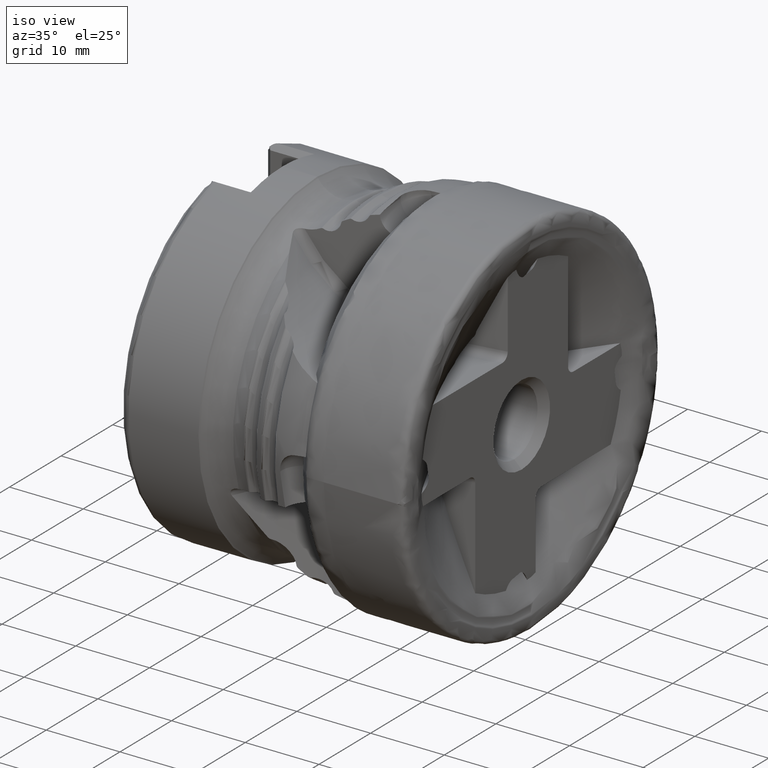
[diagram: clean part render]
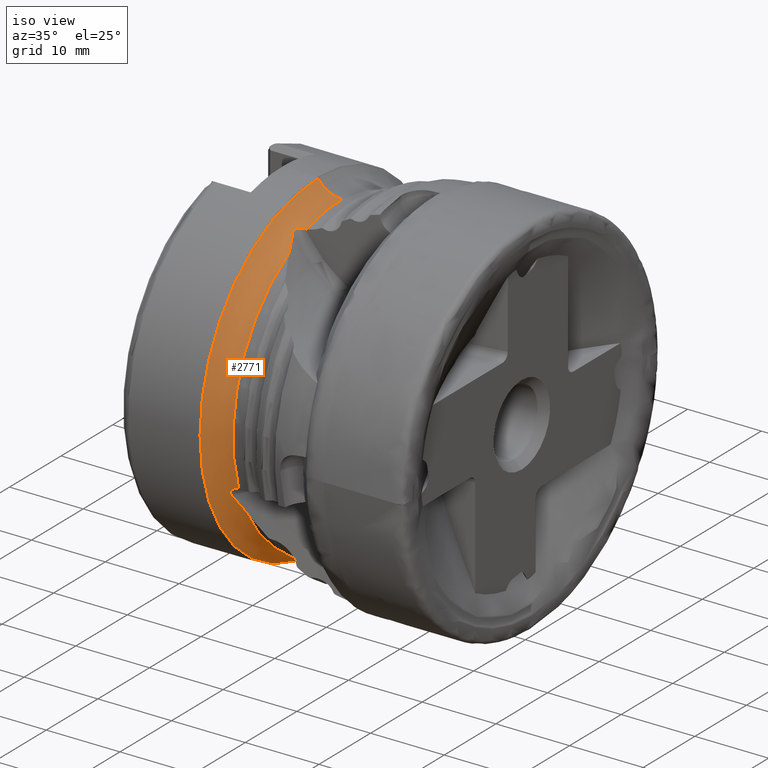
[diagram: same view with one face highlighted and labeled with its STEP entity id]
A machine part, iso view. The second image highlights one B-rep face of the part: STEP entity #2771.
In plain terms, the highlighted toroidal blend (fillet) surface has major radius 25.1416 mm and minor (blend) radius 4 mm.
Its self-contained STEP definition (entity closure, byte-faithful):
#117 = CARTESIAN_POINT ( 'NONE',  ( -24.86646095473861700, 0.0000000000000000000, 0.0000000000000000000 ) ) ;
#283 = EDGE_CURVE ( 'NONE', #657, #5918, #10805, .T. ) ;
#456 = VERTEX_POINT ( 'NONE', #5902 ) ;
#657 = VERTEX_POINT ( 'NONE', #11895 ) ;
#819 = CARTESIAN_POINT ( 'NONE',  ( -25.45150758217734200, -20.03971207062162600, -6.864271558683668700 ) ) ;
#845 = VERTEX_POINT ( 'NONE', #10130 ) ;
#1109 = VERTEX_POINT ( 'NONE', #5803 ) ;
#1203 = AXIS2_PLACEMENT_3D ( 'NONE', #117, #10637, #4636 ) ;
#1319 = CARTESIAN_POINT ( 'NONE',  ( -26.01629957377739200, -7.887032940577444900, 19.79719433075360200 ) ) ;
#1404 = B_SPLINE_CURVE_WITH_KNOTS ( 'NONE', 3,
 ( #11397, #3256, #15045, #12776 ),
 .UNSPECIFIED., .F., .F.,
 ( 4, 4 ),
 ( 0.001752062102435371600, 0.002067427325029048100 ),
 .UNSPECIFIED. ) ;
#1535 = ORIENTED_EDGE ( 'NONE', *, *, #5102, .F. ) ;
#1620 = DIRECTION ( 'NONE',  ( 0.0000000000000000000, 0.0000000000000000000, -1.000000000000000000 ) ) ;
#1628 = VERTEX_POINT ( 'NONE', #2557 ) ;
#1682 = TOROIDAL_SURFACE ( 'NONE', #4955, 25.14159263926023200, 3.999999999999998200 ) ;
#2293 = CARTESIAN_POINT ( 'NONE',  ( -24.86646095473862400, -10.26275962623273600, 18.48357931188085600 ) ) ;
#2557 = CARTESIAN_POINT ( 'NONE',  ( -28.14306913189459200, 2.797985676376210000E-015, 22.84728689385606200 ) ) ;
#2568 = ORIENTED_EDGE ( 'NONE', *, *, #5636, .T. ) ;
#2771 = ADVANCED_FACE ( 'NONE', ( #6070 ), #1682, .F. ) ;
#2776 = DIRECTION ( 'NONE',  ( 1.000000000000000000, -0.0000000000000000000, -0.0000000000000000000 ) ) ;
#2815 = VERTEX_POINT ( 'NONE', #10461 ) ;
#3072 = CARTESIAN_POINT ( 'NONE',  ( -25.69706698695036500, -20.04050266196309200, -6.997064944563985200 ) ) ;
#3221 = CARTESIAN_POINT ( 'NONE',  ( -25.99015826700548400, -19.76578782764195100, -7.944652700704248000 ) ) ;
#3256 = CARTESIAN_POINT ( 'NONE',  ( -24.97018082095077300, -6.761549179367863300, 20.03119373359576000 ) ) ;
#3411 = CARTESIAN_POINT ( 'NONE',  ( -25.25961160034550800, -9.497912284550750400, 18.90825054497908300 ) ) ;
#3633 = CARTESIAN_POINT ( 'NONE',  ( -24.86646095473861700, 0.0000000000000000000, 0.0000000000000000000 ) ) ;
#3864 = DIRECTION ( 'NONE',  ( -0.0000000000000000000, -1.000000000000000000, -0.0000000000000000000 ) ) ;
#3911 = VERTEX_POINT ( 'NONE', #11967 ) ;
#4018 = CARTESIAN_POINT ( 'NONE',  ( -25.31643503632793800, -6.819057476199514400, 20.03592710639268800 ) ) ;
#4101 = EDGE_CURVE ( 'NONE', #1109, #5918, #4111, .T. ) ;
#4111 = B_SPLINE_CURVE_WITH_KNOTS ( 'NONE', 3,
 ( #3221, #12429, #11457, #12630, #8936, #12585, #6619, #4407, #3072, #819, #5533, #7856 ),
 .UNSPECIFIED., .F., .F.,
 ( 4, 2, 2, 2, 2, 4 ),
 ( 1.734723475976807100E-018, 0.0002097713467770344800, 0.0004195426935540672200, 0.0008390853871081360700, 0.001258628080662204700, 0.001678170774216273700 ),
 .UNSPECIFIED. ) ;
#4218 = CARTESIAN_POINT ( 'NONE',  ( -24.97018082095077000, -20.03119373359568200, -6.761549179368072000 ) ) ;
#4407 = CARTESIAN_POINT ( 'NONE',  ( -25.80968452655326200, -20.03758071845825800, -7.086092302091636000 ) ) ;
#4636 = DIRECTION ( 'NONE',  ( 0.0000000000000000000, 0.0000000000000000000, -1.000000000000000000 ) ) ;
#4700 = CARTESIAN_POINT ( 'NONE',  ( -25.63500050405709300, -8.727479102105224500, 19.33909671061196500 ) ) ;
#4852 = CARTESIAN_POINT ( 'NONE',  ( -25.99015826700548400, -7.944652700704043700, 19.76578782764203600 ) ) ;
#4875 = DIRECTION ( 'NONE',  ( 1.000000000000000000, -0.0000000000000000000, -0.0000000000000000000 ) ) ;
#4955 = AXIS2_PLACEMENT_3D ( 'NONE', #6788, #15019, #7974 ) ;
#4960 = AXIS2_PLACEMENT_3D ( 'NONE', #10376, #6962, #5819 ) ;
#5102 = EDGE_CURVE ( 'NONE', #456, #2815, #7685, .T. ) ;
#5159 = CARTESIAN_POINT ( 'NONE',  ( -25.17730858297555600, -6.795950391805374300, 20.03231453211504500 ) ) ;
#5259 = CARTESIAN_POINT ( 'NONE',  ( -25.45150758217733500, -6.864271558683456400, 20.03971207062169000 ) ) ;
#5296 = CARTESIAN_POINT ( 'NONE',  ( -25.07379688886755200, -20.02962673497376400, -6.778758453149142000 ) ) ;
#5386 = EDGE_CURVE ( 'NONE', #456, #1109, #7984, .T. ) ;
#5466 = EDGE_CURVE ( 'NONE', #3911, #7047, #1404, .T. ) ;
#5533 = CARTESIAN_POINT ( 'NONE',  ( -25.31643503632794900, -20.03592710639261700, -6.819057476199730200 ) ) ;
#5563 = CARTESIAN_POINT ( 'NONE',  ( -25.17730858297555200, -20.03231453211497000, -6.795950391805583000 ) ) ;
#5636 = EDGE_CURVE ( 'NONE', #8830, #12607, #14379, .T. ) ;
#5779 = ORIENTED_EDGE ( 'NONE', *, *, #12522, .T. ) ;
#5803 = CARTESIAN_POINT ( 'NONE',  ( -25.99015826700548400, -19.76578782764195100, -7.944652700704248000 ) ) ;
#5819 = DIRECTION ( 'NONE',  ( 0.0000000000000000000, 1.224646799147353500E-016, 1.000000000000000000 ) ) ;
#5902 = CARTESIAN_POINT ( 'NONE',  ( -24.86646095473861700, -18.48357931188073500, -10.26275962623294200 ) ) ;
#5918 = VERTEX_POINT ( 'NONE', #5563 ) ;
#6054 = B_SPLINE_CURVE_WITH_KNOTS ( 'NONE', 3,
 ( #10646, #1319, #13126, #9621, #9517, #10794, #8656, #9771, #12290, #5259, #4018, #5159 ),
 .UNSPECIFIED., .F., .F.,
 ( 4, 2, 2, 2, 2, 4 ),
 ( 3.469446951953614200E-018, 0.0002097713467770366700, 0.0004195426935540698800, 0.0008390853871081329200, 0.001258628080662196000, 0.001678170774216259100 ),
 .UNSPECIFIED. ) ;
#6070 = FACE_OUTER_BOUND ( 'NONE', #13312, .T. ) ;
#6249 = DIRECTION ( 'NONE',  ( 1.000000000000000000, -0.0000000000000000000, -0.0000000000000000000 ) ) ;
#6434 = CARTESIAN_POINT ( 'NONE',  ( -24.86646095473862400, -10.26275962623273600, 18.48357931188085600 ) ) ;
#6462 = AXIS2_PLACEMENT_3D ( 'NONE', #3633, #4875, #14185 ) ;
#6508 = CARTESIAN_POINT ( 'NONE',  ( -25.63500050405708900, -19.33909671061187300, -8.727479102105430500 ) ) ;
#6619 = CARTESIAN_POINT ( 'NONE',  ( -25.98224801402750800, -20.00749763805894700, -7.305696231441901400 ) ) ;
#6788 = CARTESIAN_POINT ( 'NONE',  ( -24.86646095473861700, 0.0000000000000000000, 0.0000000000000000000 ) ) ;
#6962 = DIRECTION ( 'NONE',  ( 0.0000000000000000000, 1.000000000000000000, -1.224646799147353200E-016 ) ) ;
#7047 = VERTEX_POINT ( 'NONE', #9066 ) ;
#7549 = DIRECTION ( 'NONE',  ( 0.0000000000000000000, 0.0000000000000000000, -1.000000000000000000 ) ) ;
#7608 = AXIS2_PLACEMENT_3D ( 'NONE', #13566, #2776, #7549 ) ;
#7685 = CIRCLE ( 'NONE', #6462, 21.14159263926023500 ) ;
#7856 = CARTESIAN_POINT ( 'NONE',  ( -25.17730858297555200, -20.03231453211497000, -6.795950391805583000 ) ) ;
#7974 = DIRECTION ( 'NONE',  ( 0.0000000000000000000, 0.0000000000000000000, -1.000000000000000000 ) ) ;
#7984 = B_SPLINE_CURVE_WITH_KNOTS ( 'NONE', 3,
 ( #12368, #12314, #6508, #14751 ),
 .UNSPECIFIED., .F., .F.,
 ( 4, 4 ),
 ( 0.003880764028521166400, 0.006757868594235358200 ),
 .UNSPECIFIED. ) ;
#8656 = CARTESIAN_POINT ( 'NONE',  ( -25.98224801402749800, -7.305696231441690900, 20.00749763805902100 ) ) ;
#8830 = VERTEX_POINT ( 'NONE', #6434 ) ;
#8936 = CARTESIAN_POINT ( 'NONE',  ( -26.06132129204552000, -19.91075362151022100, -7.634713911941119600 ) ) ;
#9066 = CARTESIAN_POINT ( 'NONE',  ( -25.17730858297555600, -6.795950391805374300, 20.03231453211504500 ) ) ;
#9177 = ORIENTED_EDGE ( 'NONE', *, *, #4101, .T. ) ;
#9375 = AXIS2_PLACEMENT_3D ( 'NONE', #10912, #3864, #1620 ) ;
#9517 = CARTESIAN_POINT ( 'NONE',  ( -26.06132129204552000, -7.634713911940907300, 19.91075362151030200 ) ) ;
#9621 = CARTESIAN_POINT ( 'NONE',  ( -26.05854541756665600, -7.700742333996633900, 19.88436705974785900 ) ) ;
#9706 = CIRCLE ( 'NONE', #4960, 3.999999999999996400 ) ;
#9771 = CARTESIAN_POINT ( 'NONE',  ( -25.80968452655327300, -7.086092302091425500, 20.03758071845832900 ) ) ;
#10011 = CARTESIAN_POINT ( 'NONE',  ( -24.86646095473861700, -20.03699206719059200, -6.744322666047623600 ) ) ;
#10052 = VERTEX_POINT ( 'NONE', #10530 ) ;
#10130 = CARTESIAN_POINT ( 'NONE',  ( -24.86646095473861700, 2.589098375454729100E-015, 21.14159263926023500 ) ) ;
#10376 = CARTESIAN_POINT ( 'NONE',  ( -24.86646095473861700, 3.078957095113670100E-015, 25.14159263926023200 ) ) ;
#10461 = CARTESIAN_POINT ( 'NONE',  ( -24.86646095473861700, 0.0000000000000000000, -21.14159263926023500 ) ) ;
#10530 = CARTESIAN_POINT ( 'NONE',  ( -28.14306913189459200, 0.0000000000000000000, -22.84728689385606200 ) ) ;
#10637 = DIRECTION ( 'NONE',  ( 1.000000000000000000, -0.0000000000000000000, -0.0000000000000000000 ) ) ;
#10646 = CARTESIAN_POINT ( 'NONE',  ( -25.99015826700548400, -7.944652700704043700, 19.76578782764203600 ) ) ;
#10651 = CIRCLE ( 'NONE', #1203, 21.14159263926023500 ) ;
#10794 = CARTESIAN_POINT ( 'NONE',  ( -26.03966668605694000, -7.438284463519401900, 19.97814154209974900 ) ) ;
#10805 = B_SPLINE_CURVE_WITH_KNOTS ( 'NONE', 3,
 ( #10011, #4218, #5296, #13629 ),
 .UNSPECIFIED., .F., .F.,
 ( 4, 4 ),
 ( 0.001752062102435372700, 0.002067427325029045500 ),
 .UNSPECIFIED. ) ;
#10912 = CARTESIAN_POINT ( 'NONE',  ( -24.86646095473861700, 0.0000000000000000000, -25.14159263926023200 ) ) ;
#10998 = CIRCLE ( 'NONE', #9375, 3.999999999999996400 ) ;
#11032 = DIRECTION ( 'NONE',  ( 0.0000000000000000000, 0.0000000000000000000, -1.000000000000000000 ) ) ;
#11059 = EDGE_CURVE ( 'NONE', #8830, #657, #10651, .T. ) ;
#11215 = ORIENTED_EDGE ( 'NONE', *, *, #5466, .F. ) ;
#11270 = ORIENTED_EDGE ( 'NONE', *, *, #283, .F. ) ;
#11290 = AXIS2_PLACEMENT_3D ( 'NONE', #12050, #6249, #11032 ) ;
#11397 = CARTESIAN_POINT ( 'NONE',  ( -24.86646095473861700, -6.744322666047414900, 20.03699206719066700 ) ) ;
#11457 = CARTESIAN_POINT ( 'NONE',  ( -26.03582549505129500, -19.82745232246609400, -7.827025065782099700 ) ) ;
#11895 = CARTESIAN_POINT ( 'NONE',  ( -24.86646095473861700, -20.03699206719059200, -6.744322666047623600 ) ) ;
#11934 = ORIENTED_EDGE ( 'NONE', *, *, #5386, .T. ) ;
#11967 = CARTESIAN_POINT ( 'NONE',  ( -24.86646095473861700, -6.744322666047414900, 20.03699206719066700 ) ) ;
#12050 = CARTESIAN_POINT ( 'NONE',  ( -24.86646095473861700, 0.0000000000000000000, 0.0000000000000000000 ) ) ;
#12290 = CARTESIAN_POINT ( 'NONE',  ( -25.69706698695037200, -6.997064944563774700, 20.04050266196317100 ) ) ;
#12314 = CARTESIAN_POINT ( 'NONE',  ( -25.25961160034550100, -18.90825054497897600, -9.497912284550951200 ) ) ;
#12368 = CARTESIAN_POINT ( 'NONE',  ( -24.86646095473861700, -18.48357931188073500, -10.26275962623294200 ) ) ;
#12429 = CARTESIAN_POINT ( 'NONE',  ( -26.01629957377738800, -19.79719433075350600, -7.887032940577652700 ) ) ;
#12439 = ORIENTED_EDGE ( 'NONE', *, *, #12749, .T. ) ;
#12522 = EDGE_CURVE ( 'NONE', #845, #1628, #9706, .T. ) ;
#12585 = CARTESIAN_POINT ( 'NONE',  ( -26.03966668605695400, -19.97814154209967100, -7.438284463519611500 ) ) ;
#12592 = ORIENTED_EDGE ( 'NONE', *, *, #11059, .F. ) ;
#12607 = VERTEX_POINT ( 'NONE', #4852 ) ;
#12630 = CARTESIAN_POINT ( 'NONE',  ( -26.05854541756665600, -19.88436705974778500, -7.700742333996843500 ) ) ;
#12723 = ORIENTED_EDGE ( 'NONE', *, *, #12752, .F. ) ;
#12749 = EDGE_CURVE ( 'NONE', #12607, #7047, #6054, .T. ) ;
#12752 = EDGE_CURVE ( 'NONE', #2815, #10052, #10998, .T. ) ;
#12776 = CARTESIAN_POINT ( 'NONE',  ( -25.17730858297555600, -6.795950391805374300, 20.03231453211504500 ) ) ;
#12825 = CIRCLE ( 'NONE', #11290, 21.14159263926023500 ) ;
#12927 = CARTESIAN_POINT ( 'NONE',  ( -25.99015826700548400, -7.944652700704043700, 19.76578782764203600 ) ) ;
#13126 = CARTESIAN_POINT ( 'NONE',  ( -26.03582549505129900, -7.827025065781888300, 19.82745232246618300 ) ) ;
#13262 = EDGE_CURVE ( 'NONE', #1628, #10052, #13949, .T. ) ;
#13312 = EDGE_LOOP ( 'NONE', ( #15000, #5779, #14078, #12723, #1535, #11934, #9177, #11270, #12592, #2568, #12439, #11215 ) ) ;
#13566 = CARTESIAN_POINT ( 'NONE',  ( -28.14306913189459200, 0.0000000000000000000, 0.0000000000000000000 ) ) ;
#13629 = CARTESIAN_POINT ( 'NONE',  ( -25.17730858297555200, -20.03231453211497000, -6.795950391805583000 ) ) ;
#13949 = CIRCLE ( 'NONE', #7608, 22.84728689385606200 ) ;
#14078 = ORIENTED_EDGE ( 'NONE', *, *, #13262, .T. ) ;
#14185 = DIRECTION ( 'NONE',  ( 0.0000000000000000000, 0.0000000000000000000, -1.000000000000000000 ) ) ;
#14379 = B_SPLINE_CURVE_WITH_KNOTS ( 'NONE', 3,
 ( #2293, #3411, #4700, #12927 ),
 .UNSPECIFIED., .F., .F.,
 ( 4, 4 ),
 ( 0.003880764028521183800, 0.006757868594235357300 ),
 .UNSPECIFIED. ) ;
#14553 = EDGE_CURVE ( 'NONE', #845, #3911, #12825, .T. ) ;
#14751 = CARTESIAN_POINT ( 'NONE',  ( -25.99015826700548400, -19.76578782764195100, -7.944652700704248000 ) ) ;
#15000 = ORIENTED_EDGE ( 'NONE', *, *, #14553, .F. ) ;
#15019 = DIRECTION ( 'NONE',  ( 1.000000000000000000, -0.0000000000000000000, -0.0000000000000000000 ) ) ;
#15045 = CARTESIAN_POINT ( 'NONE',  ( -25.07379688886755500, -6.778758453148932400, 20.02962673497384200 ) ) ;